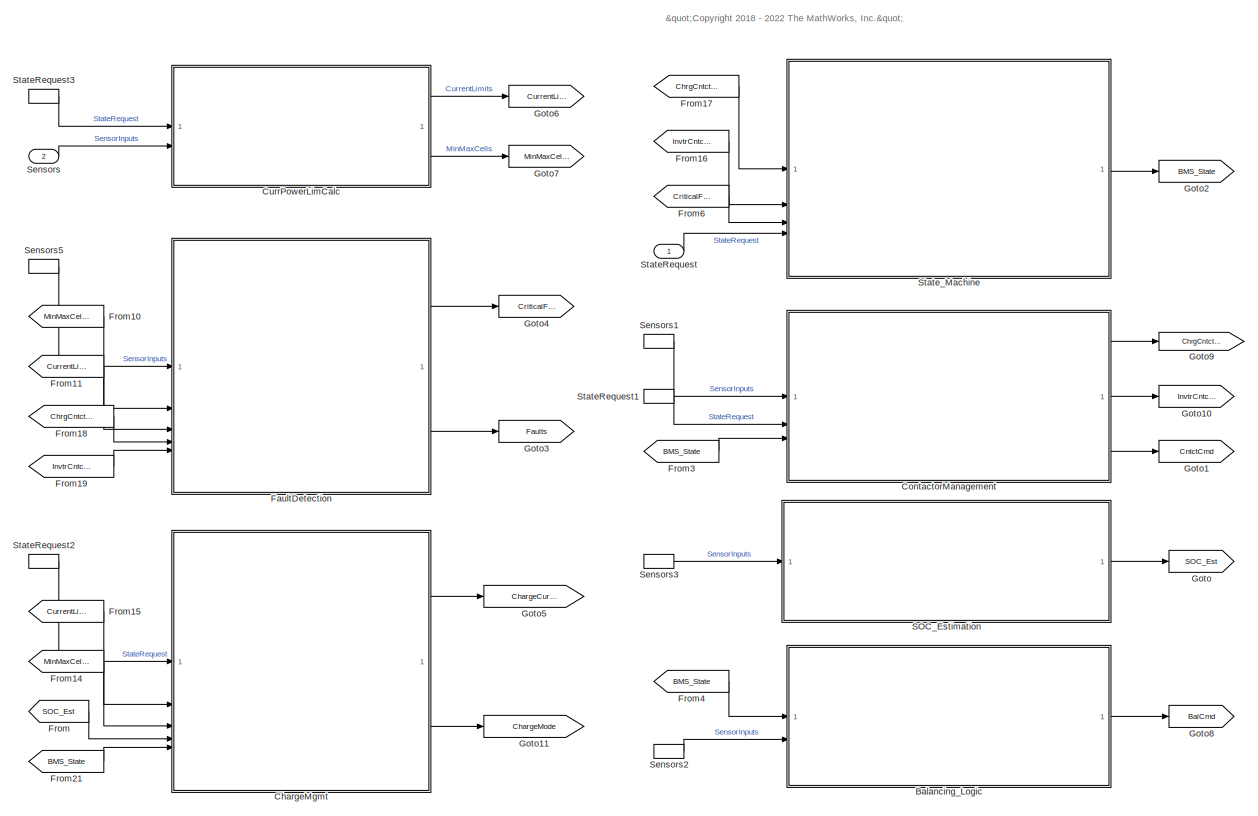
[diagram: root canvas - part 1/2, most of the canvas]
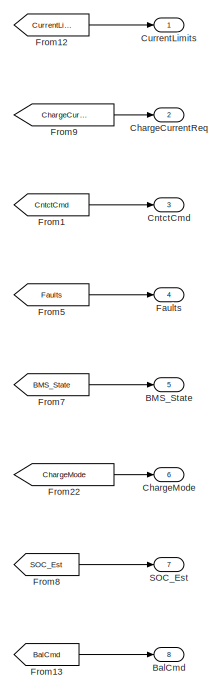
[diagram: root canvas - part 2/2, right side, full height]
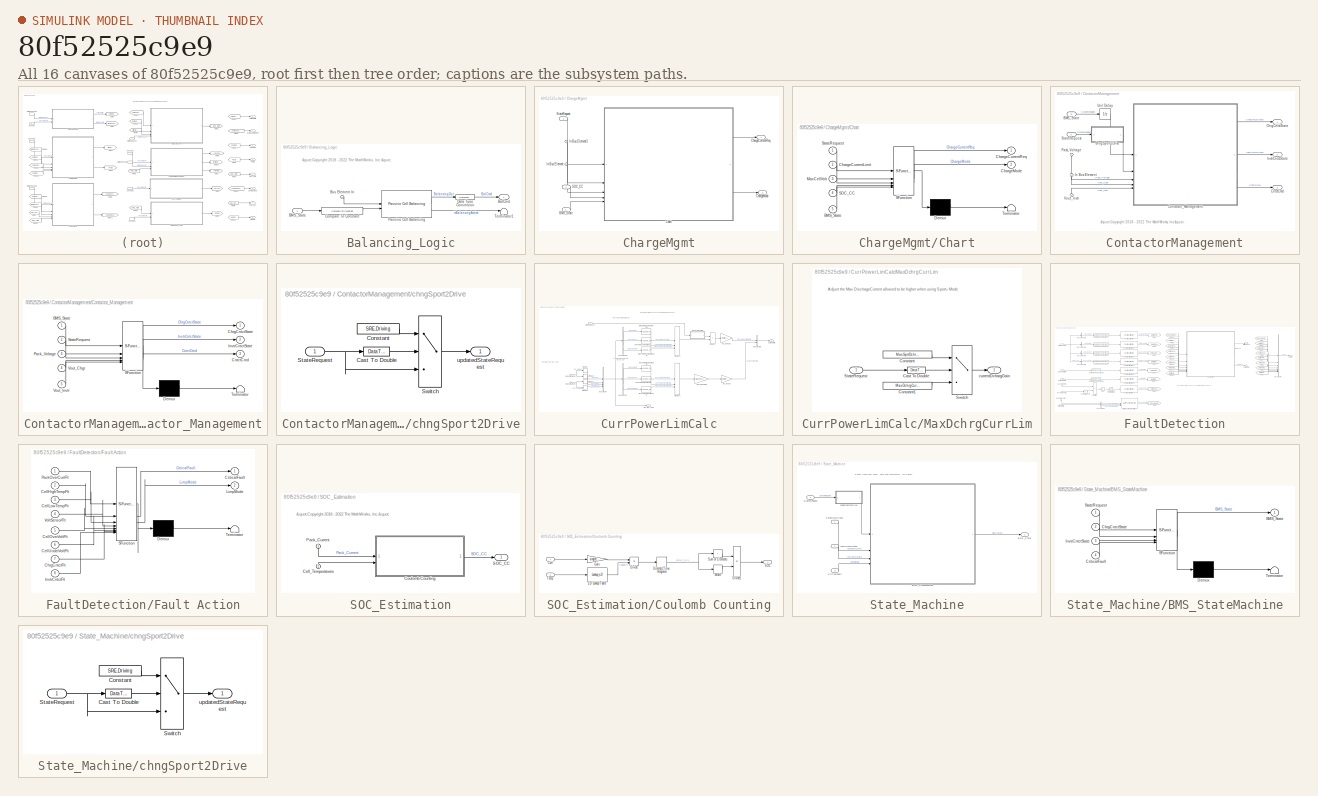
[diagram: thumbnail index - all 16 canvases of the model, root first then tree order]
MODEL slx_80f52525c9e9
KIND model
BLOCK [Outport] BMS_State
  Port = 5
BLOCK [Outport] BalCmd
  Port = 8
BLOCK [SubSystem] Balancing_Logic
BLOCK [Inport] Balancing_Logic/BMS_State
  OutDataTypeStr = Enum: BMS_State_Enum
  PortDimensions = 1
  SampleTime = [0.1,0]
  SamplingMode = Sample based
  SignalType = real
BLOCK [Outport] Balancing_Logic/BalCmd
  OutDataTypeStr = boolean
  PortDimensions = [1,PlntBattNumCellSer]
  SampleTime = [0.1,0]
  SamplingMode = Sample based
  SignalType = real
  VectorParamsAs1DForOutWhenUnconnected = off
BLOCK [Inport] Balancing_Logic/Bus Element In
  Port = 2
BLOCK [Reference] Balancing_Logic/Compare To Constant  REF=simulink/Logic and Bit
Operations/Compare
To Constant
  SourceBlock = simulink/Logic and Bit\nOperations/Compare\nTo Constant
  SourceType = Compare To Constant
BLOCK [DataTypeConversion] Balancing_Logic/Data Type Conversion
  OutDataTypeStr = boolean
  RndMeth = Floor
  SaturateOnIntegerOverflow = off
BLOCK [Reference] Balancing_Logic/Passive Cell Balancing  REF=BatteryBalancing/Passive Cell Balancing
  LibrarySourceBlock = batt_sl_lib/Cell Balancing/Passive Cell Balancing
  SourceBlock = BatteryBalancing/Passive Cell Balancing
  SourceType = Passive Cell Balancing
BLOCK [Terminator] Balancing_Logic/Terminator1
BLOCK [Outport] ChargeCurrentReq
  Port = 2
BLOCK [SubSystem] ChargeMgmt
BLOCK [Inport] ChargeMgmt/BMS_State
  OutDataTypeStr = Enum: BMS_State_Enum
  Port = 5
BLOCK [Outport] ChargeMgmt/ChargeCurrentReq
BLOCK [Outport] ChargeMgmt/ChargeMode
  Port = 2
BLOCK [SubSystem] ChargeMgmt/Chart
  ErrorFcn = Stateflow.Translate.translate
  PermitHierarchicalResolution = ExplicitOnly
  SFBlockType = Chart
  TreatAsAtomicUnit = on
BLOCK [Demux] ChargeMgmt/Chart/ Demux 
  Outputs = 1
BLOCK [S-Function] ChargeMgmt/Chart/ SFunction 
  EnableBusSupport = on
  FunctionName = sf_sfun
  Parameters = CV_Gain,MaxCellVoltThrsld,MaxChrgCurrLimit,PlntBattNumCellPar,currentFactor,noCurrent,voltThreshold
  PortCounts = [5 3]
  SFcnIsStateOwnerBlock = off
  SFunctionDeploymentMode = off
  Tag = Stateflow S-Function 4
BLOCK [Terminator] ChargeMgmt/Chart/ Terminator 
BLOCK [Inport] ChargeMgmt/Chart/BMS_State
  Port = 5
BLOCK [Inport] ChargeMgmt/Chart/ChargeCurrentLimit
  Port = 2
BLOCK [Outport] ChargeMgmt/Chart/ChargeCurrentReq
BLOCK [Outport] ChargeMgmt/Chart/ChargeMode
  Port = 2
BLOCK [Inport] ChargeMgmt/Chart/MaxCellVolt
  Port = 3
BLOCK [Inport] ChargeMgmt/Chart/SOC_CC
  Port = 4
BLOCK [Inport] ChargeMgmt/Chart/StateRequest
BLOCK [Inport] ChargeMgmt/In Bus Element
  Port = 3
BLOCK [Inport] ChargeMgmt/In Bus Element3
  Port = 2
BLOCK [Inport] ChargeMgmt/SOC_CC
  Port = 4
BLOCK [Inport] ChargeMgmt/StateRequest
  OutDataTypeStr = Enum: SRE
  PortDimensions = 1
  SignalType = real
  VarSizeSig = No
BLOCK [Outport] ChargeMode
  Port = 6
BLOCK [Outport] CntctCmd
  OutDataTypeStr = Bus: CntctCmd
  Port = 3
BLOCK [SubSystem] ContactorManagement
BLOCK [Inport] ContactorManagement/BMS_State
  OutDataTypeStr = Enum: BMS_State_Enum
  Port = 3
  PortDimensions = 1
  SampleTime = [0.10000000000000001,0]
  SamplingMode = Sample based
  SignalType = real
BLOCK [Outport] ContactorManagement/ChrgCntctState
BLOCK [Outport] ContactorManagement/CntctCmd
  BusOutputAsStruct = on
  OutDataTypeStr = Bus: CntctCmd
  Port = 3
BLOCK [SubSystem] ContactorManagement/Contactor_Management
  ErrorFcn = Stateflow.Translate.translate
  PermitHierarchicalResolution = ExplicitOnly
  SFBlockType = Chart
  TreatAsAtomicUnit = on
  VariantControl = (default)
BLOCK [Demux] ContactorManagement/Contactor_Management/ Demux 
  Outputs = 1
BLOCK [S-Function] ContactorManagement/Contactor_Management/ SFunction 
  EnableBusSupport = on
  FunctionName = sf_sfun
  Parameters = CntctWaitTime,PreChrgTimeOut,PreChrgVoltRatio
  PortCounts = [5 4]
  SFcnIsStateOwnerBlock = off
  SFunctionDeploymentMode = off
  Tag = Stateflow S-Function 3
BLOCK [Terminator] ContactorManagement/Contactor_Management/ Terminator 
BLOCK [Inport] ContactorManagement/Contactor_Management/BMS_State
BLOCK [Outport] ContactorManagement/Contactor_Management/ChrgCntctState
BLOCK [Outport] ContactorManagement/Contactor_Management/CntctCmd
  Port = 3
BLOCK [Outport] ContactorManagement/Contactor_Management/InvtrCntctState
  Port = 2
BLOCK [Inport] ContactorManagement/Contactor_Management/Pack_Voltage
  Port = 3
BLOCK [Inport] ContactorManagement/Contactor_Management/StateRequest
  Port = 2
BLOCK [Inport] ContactorManagement/Contactor_Management/Vout_Chgr
  Port = 4
BLOCK [Inport] ContactorManagement/Contactor_Management/Vout_Invtr
  Port = 5
BLOCK [Inport] ContactorManagement/In Bus Element
BLOCK [Outport] ContactorManagement/InvtrCntctState
  Port = 2
BLOCK [Inport] ContactorManagement/Pack_Voltage
BLOCK [Inport] ContactorManagement/StateRequest
  OutDataTypeStr = Enum: SRE
  Port = 2
  PortDimensions = 1
  SampleTime = [0.10000000000000001,0]
  SamplingMode = Sample based
  SignalType = real
BLOCK [UnitDelay] ContactorManagement/Unit Delay
  HasFrameUpgradeWarning = on
  InitialCondition = BMS_State_Enum.BMS_Standby
  SampleTime = -1
BLOCK [Inport] ContactorManagement/Vout_Invtr
BLOCK [SubSystem] ContactorManagement/chngSport2Drive
  ShowPortLabels = none
BLOCK [DataTypeConversion] ContactorManagement/chngSport2Drive/Cast To Double
  OutDataTypeStr = int8
  RndMeth = Floor
  SaturateOnIntegerOverflow = off
BLOCK [Constant] ContactorManagement/chngSport2Drive/Constant
  Value = SRE.Driving
BLOCK [Inport] ContactorManagement/chngSport2Drive/StateRequest
BLOCK [Switch] ContactorManagement/chngSport2Drive/Switch
  InputSameDT = off
  SaturateOnIntegerOverflow = off
  Threshold = 3
BLOCK [Outport] ContactorManagement/chngSport2Drive/updatedStateRequest
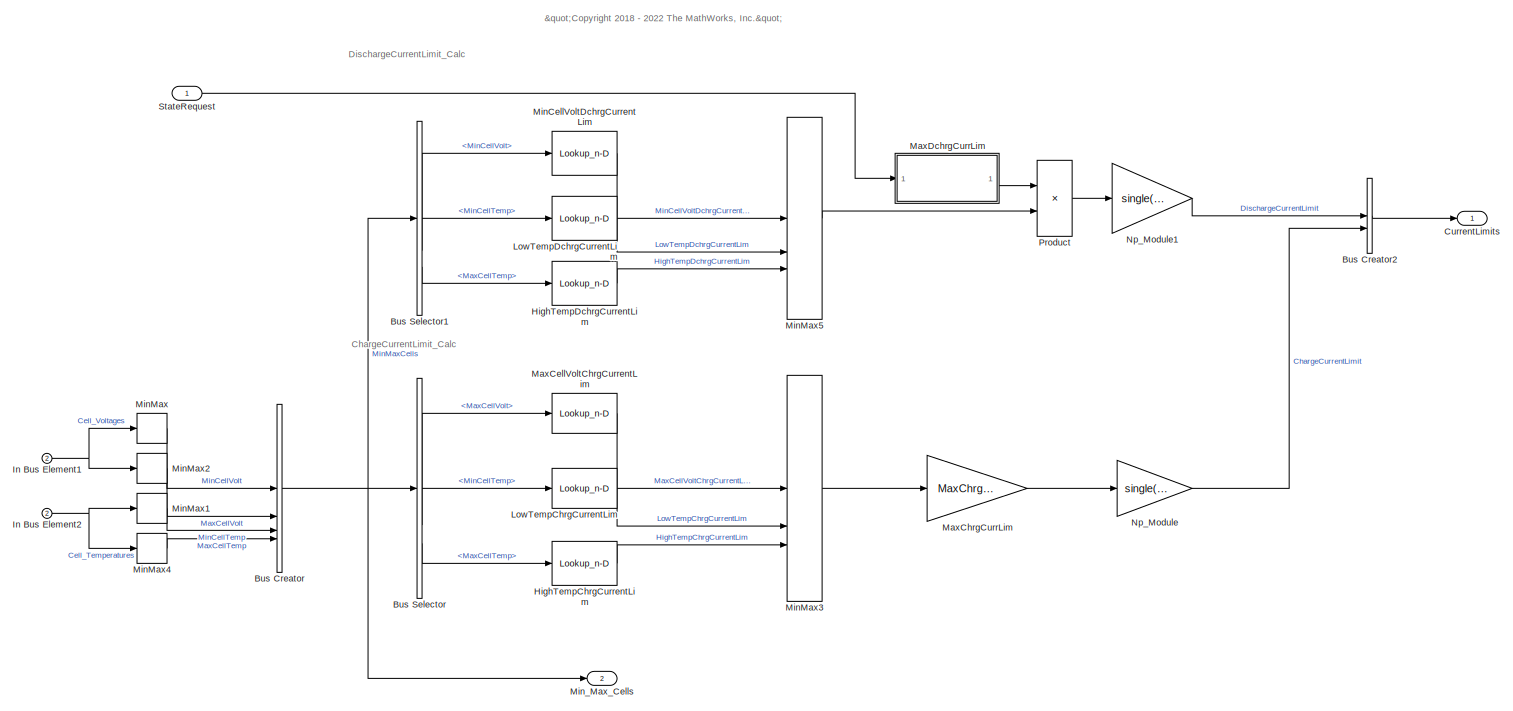
[diagram: CurrPowerLimCalc - part 1/2, most of the canvas]
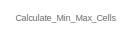
[diagram: CurrPowerLimCalc - part 2/2, middle left region]
BLOCK [SubSystem] CurrPowerLimCalc
BLOCK [BusCreator] CurrPowerLimCalc/Bus Creator
  DisplayOption = bar
  InheritFromInputs = off
  Inputs = 4
  NonVirtualBus = on
  OutDataTypeStr = Bus: Min_Max_Cells
BLOCK [BusCreator] CurrPowerLimCalc/Bus Creator2
  DisplayOption = bar
  InheritFromInputs = on
  Inputs = 2
  NonVirtualBus = on
  OutDataTypeStr = Bus: CurrentLimits
BLOCK [BusSelector] CurrPowerLimCalc/Bus Selector
  OutputSignals = MaxCellVolt,MinCellTemp,MaxCellTemp
BLOCK [BusSelector] CurrPowerLimCalc/Bus Selector1
  OutputSignals = MinCellVolt,MinCellTemp,MaxCellTemp
BLOCK [Outport] CurrPowerLimCalc/CurrentLimits
  OutDataTypeStr = Bus: CurrentLimits
BLOCK [Lookup_n-D] CurrPowerLimCalc/HighTempChrgCurrentLim
  BreakpointsForDimension1 = single([40  45  50    55 65])
  ExtrapMethod = Clip
  InputPortMap = u0
  InternalRulePriority = Speed
  NumberOfTableDimensions = 1
  RndMeth = Simplest
  Table = single([1.0 1.0 0.75 0.5 0])
BLOCK [Lookup_n-D] CurrPowerLimCalc/HighTempDchrgCurrentLim
  BreakpointsForDimension1 = single([40, 45, 50, 60])
  ExtrapMethod = Clip
  InputPortMap = u0
  InternalRulePriority = Speed
  NumberOfTableDimensions = 1
  RndMeth = Simplest
  Table = single([1, 0.5, 0.3, 0])
BLOCK [Inport] CurrPowerLimCalc/In Bus Element1
  Port = 2
BLOCK [Inport] CurrPowerLimCalc/In Bus Element2
  Port = 2
BLOCK [Lookup_n-D] CurrPowerLimCalc/LowTempChrgCurrentLim
  BreakpointsForDimension1 = single([-15 -10 -5.0 0.0 5.0 10 15.0])
  ExtrapMethod = Clip
  InputPortMap = u0
  InternalRulePriority = Speed
  NumberOfTableDimensions = 1
  RndMeth = Simplest
  Table = single([0.1 0.2  0.3 0.3 0.5 1.0 1.0])
BLOCK [Lookup_n-D] CurrPowerLimCalc/LowTempDchrgCurrentLim
  BreakpointsForDimension1 = single([-10, -5,    0,   5, 10, 15, 20])
  ExtrapMethod = Clip
  InputPortMap = u0
  InternalRulePriority = Speed
  NumberOfTableDimensions = 1
  RndMeth = Simplest
  Table = single([0,  0.2, 0.3, 0.5, 0.75, 1, 1])
BLOCK [Lookup_n-D] CurrPowerLimCalc/MaxCellVoltChrgCurrentLim
  BreakpointsForDimension1 = single([4.0 4.10 4.15 4.2])
  ExtrapMethod = Clip
  InputPortMap = u0
  InternalRulePriority = Speed
  NumberOfTableDimensions = 1
  RndMeth = Simplest
  Table = single([1.0 0.75 0.50 0.2])
BLOCK [Gain] CurrPowerLimCalc/MaxChrgCurrLim
  Gain = MaxChrgCurrLimit
BLOCK [SubSystem] CurrPowerLimCalc/MaxDchrgCurrLim
  ShowPortLabels = none
BLOCK [DataTypeConversion] CurrPowerLimCalc/MaxDchrgCurrLim/Cast To Double
  OutDataTypeStr = int8
  RndMeth = Floor
  SaturateOnIntegerOverflow = off
BLOCK [Constant] CurrPowerLimCalc/MaxDchrgCurrLim/Constant
  OutDataTypeStr = single
  Value = MaxSprtDchrgCurrLimit
BLOCK [Constant] CurrPowerLimCalc/MaxDchrgCurrLim/Constant1
  Value = MaxDchrgCurrLimit
BLOCK [Inport] CurrPowerLimCalc/MaxDchrgCurrLim/StateRequest
BLOCK [Switch] CurrPowerLimCalc/MaxDchrgCurrLim/Switch
  InputSameDT = off
  SaturateOnIntegerOverflow = off
  Threshold = 3
BLOCK [Outport] CurrPowerLimCalc/MaxDchrgCurrLim/currentDchargGain
BLOCK [Lookup_n-D] CurrPowerLimCalc/MinCellVoltDchrgCurrentLim
  BreakpointsForDimension1 = MinCellVoltDchrgCurrentLim_BP
  DataSpecification = Lookup table object
  ExtrapMethod = Clip
  InputPortMap = u0
  InternalRulePriority = Speed
  LookupTableObject = MinCellVoltDchrgCurrentLimTable
  NumberOfTableDimensions = 1
  RndMeth = Simplest
  Table = MinCellVoltDchrgCurrentLim_Table
BLOCK [MinMax] CurrPowerLimCalc/MinMax
BLOCK [MinMax] CurrPowerLimCalc/MinMax1
BLOCK [MinMax] CurrPowerLimCalc/MinMax2
  Function = max
BLOCK [MinMax] CurrPowerLimCalc/MinMax3
  Inputs = 3
BLOCK [MinMax] CurrPowerLimCalc/MinMax4
  Function = max
BLOCK [MinMax] CurrPowerLimCalc/MinMax5
  Inputs = 3
BLOCK [Outport] CurrPowerLimCalc/Min_Max_Cells
  OutDataTypeStr = Bus: Min_Max_Cells
  Port = 2
BLOCK [Gain] CurrPowerLimCalc/Np_Module
  Gain = single(PlntBattNumCellPar)
  ParamDataTypeStr = Inherit: Inherit from 'Gain'
BLOCK [Gain] CurrPowerLimCalc/Np_Module1
  Gain = single(PlntBattNumCellPar)
  ParamDataTypeStr = Inherit: Inherit from 'Gain'
BLOCK [Product] CurrPowerLimCalc/Product
BLOCK [Inport] CurrPowerLimCalc/StateRequest
BLOCK [Outport] CurrentLimits
  OutDataTypeStr = Bus: CurrentLimits
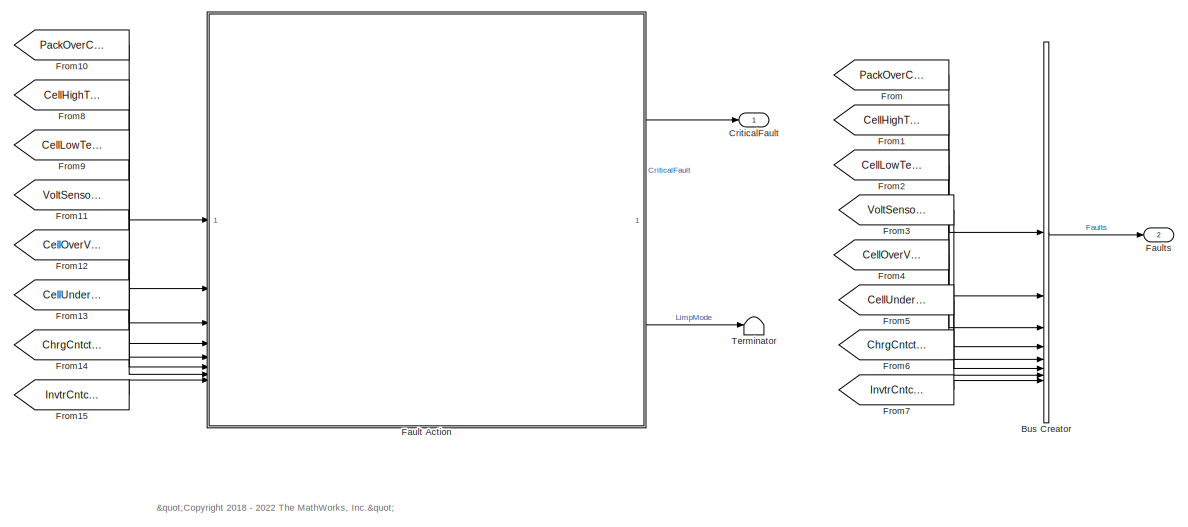
[diagram: FaultDetection - part 1/2, middle right region]
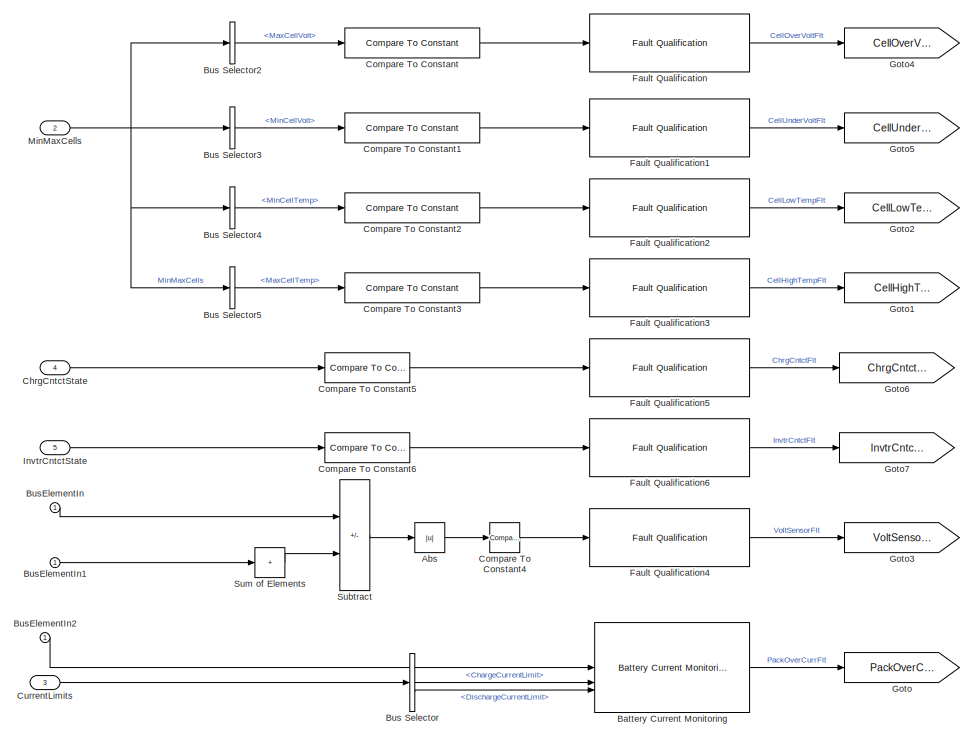
[diagram: FaultDetection - part 2/2, left side, full height]
BLOCK [SubSystem] FaultDetection
BLOCK [Abs] FaultDetection/Abs
  SaturateOnIntegerOverflow = off
BLOCK [Reference] FaultDetection/Battery Current Monitoring  REF=BatteryProtection/Battery Current
Monitoring
  LibrarySourceBlock = batt_sl_lib/Protection/Battery Current\nMonitoring
  SourceBlock = BatteryProtection/Battery Current\nMonitoring
  SourceType = Battery Current Monitoring
BLOCK [BusCreator] FaultDetection/Bus Creator
  DisplayOption = bar
  InheritFromInputs = off
  Inputs = 8
  NonVirtualBus = on
  OutDataTypeStr = Bus: Faults
BLOCK [BusSelector] FaultDetection/Bus Selector
  OutputSignals = ChargeCurrentLimit,DischargeCurrentLimit
BLOCK [BusSelector] FaultDetection/Bus Selector2
  OutputSignals = MaxCellVolt
BLOCK [BusSelector] FaultDetection/Bus Selector3
  OutputSignals = MinCellVolt
BLOCK [BusSelector] FaultDetection/Bus Selector4
  OutputSignals = MinCellTemp
BLOCK [BusSelector] FaultDetection/Bus Selector5
  OutputSignals = MaxCellTemp
BLOCK [Inport] FaultDetection/BusElementIn
BLOCK [Inport] FaultDetection/BusElementIn1
BLOCK [Inport] FaultDetection/BusElementIn2
BLOCK [Inport] FaultDetection/ChrgCntctState
  OutDataTypeStr = Enum: Contact
  Port = 4
BLOCK [Reference] FaultDetection/Compare To Constant  REF=simulink/Logic and Bit
Operations/Compare
To Constant
  SourceBlock = simulink/Logic and Bit\nOperations/Compare\nTo Constant
  SourceType = Compare To Constant
BLOCK [Reference] FaultDetection/Compare To Constant1  REF=simulink/Logic and Bit
Operations/Compare
To Constant
  SourceBlock = simulink/Logic and Bit\nOperations/Compare\nTo Constant
  SourceType = Compare To Constant
BLOCK [Reference] FaultDetection/Compare To Constant2  REF=simulink/Logic and Bit
Operations/Compare
To Constant
  SourceBlock = simulink/Logic and Bit\nOperations/Compare\nTo Constant
  SourceType = Compare To Constant
BLOCK [Reference] FaultDetection/Compare To Constant3  REF=simulink/Logic and Bit
Operations/Compare
To Constant
  SourceBlock = simulink/Logic and Bit\nOperations/Compare\nTo Constant
  SourceType = Compare To Constant
BLOCK [Reference] FaultDetection/Compare To Constant4  REF=simulink/Logic and Bit
Operations/Compare
To Constant
  SourceBlock = simulink/Logic and Bit\nOperations/Compare\nTo Constant
  SourceType = Compare To Constant
BLOCK [Reference] FaultDetection/Compare To Constant5  REF=simulink/Logic and Bit
Operations/Compare
To Constant
  SourceBlock = simulink/Logic and Bit\nOperations/Compare\nTo Constant
  SourceType = Compare To Constant
BLOCK [Reference] FaultDetection/Compare To Constant6  REF=simulink/Logic and Bit
Operations/Compare
To Constant
  SourceBlock = simulink/Logic and Bit\nOperations/Compare\nTo Constant
  SourceType = Compare To Constant
BLOCK [Outport] FaultDetection/CriticalFault
BLOCK [Inport] FaultDetection/CurrentLimits
  OutDataTypeStr = Bus: CurrentLimits
  Port = 3
BLOCK [SubSystem] FaultDetection/Fault Action
  ErrorFcn = Stateflow.Translate.translate
  PermitHierarchicalResolution = ExplicitOnly
  SFBlockType = Truth Table
  TreatAsAtomicUnit = on
BLOCK [Demux] FaultDetection/Fault Action/ Demux 
  Outputs = 1
BLOCK [S-Function] FaultDetection/Fault Action/ SFunction 
  EnableBusSupport = on
  FunctionName = sf_sfun
  PortCounts = [8 3]
  SFcnIsStateOwnerBlock = off
  SFunctionDeploymentMode = off
  Tag = Stateflow S-Function 2
BLOCK [Terminator] FaultDetection/Fault Action/ Terminator 
BLOCK [Inport] FaultDetection/Fault Action/CellHighTempFlt
  Port = 2
BLOCK [Inport] FaultDetection/Fault Action/CellLowTempFlt
  Port = 3
BLOCK [Inport] FaultDetection/Fault Action/CellOverVoltFlt
  Port = 5
BLOCK [Inport] FaultDetection/Fault Action/CellUnderVoltFlt
  Port = 6
BLOCK [Inport] FaultDetection/Fault Action/ChrgCntctFlt
  Port = 7
BLOCK [Outport] FaultDetection/Fault Action/CriticalFault
  VectorParamsAs1DForOutWhenUnconnected = off
BLOCK [Inport] FaultDetection/Fault Action/InvtrCntctFlt
  Port = 8
BLOCK [Outport] FaultDetection/Fault Action/LimpMode
  Port = 2
BLOCK [Inport] FaultDetection/Fault Action/PackOverCurrFlt
BLOCK [Inport] FaultDetection/Fault Action/VoltSensorFlt
  Port = 4
BLOCK [Reference] FaultDetection/Fault Qualification  REF=BatteryProtection/Fault Qualification
  LibrarySourceBlock = batt_sl_lib/Protection/Fault Qualification
  SourceBlock = BatteryProtection/Fault Qualification
  SourceType = Fault Qualification
BLOCK [Reference] FaultDetection/Fault Qualification1  REF=BatteryProtection/Fault Qualification
  LibrarySourceBlock = batt_sl_lib/Protection/Fault Qualification
  SourceBlock = BatteryProtection/Fault Qualification
  SourceType = Fault Qualification
BLOCK [Reference] FaultDetection/Fault Qualification2  REF=BatteryProtection/Fault Qualification
  LibrarySourceBlock = batt_sl_lib/Protection/Fault Qualification
  SourceBlock = BatteryProtection/Fault Qualification
  SourceType = Fault Qualification
BLOCK [Reference] FaultDetection/Fault Qualification3  REF=BatteryProtection/Fault Qualification
  LibrarySourceBlock = batt_sl_lib/Protection/Fault Qualification
  SourceBlock = BatteryProtection/Fault Qualification
  SourceType = Fault Qualification
BLOCK [Reference] FaultDetection/Fault Qualification4  REF=BatteryProtection/Fault Qualification
  LibrarySourceBlock = batt_sl_lib/Protection/Fault Qualification
  SourceBlock = BatteryProtection/Fault Qualification
  SourceType = Fault Qualification
BLOCK [Reference] FaultDetection/Fault Qualification5  REF=BatteryProtection/Fault Qualification
  LibrarySourceBlock = batt_sl_lib/Protection/Fault Qualification
  SourceBlock = BatteryProtection/Fault Qualification
  SourceType = Fault Qualification
BLOCK [Reference] FaultDetection/Fault Qualification6  REF=BatteryProtection/Fault Qualification
  LibrarySourceBlock = batt_sl_lib/Protection/Fault Qualification
  SourceBlock = BatteryProtection/Fault Qualification
  SourceType = Fault Qualification
BLOCK [Outport] FaultDetection/Faults
  OutDataTypeStr = Bus: Faults
  Port = 2
BLOCK [From] FaultDetection/From
  GotoTag = PackOverCurrFlt
BLOCK [From] FaultDetection/From1
  GotoTag = CellHighTempFlt
BLOCK [From] FaultDetection/From10
  GotoTag = PackOverCurrFlt
BLOCK [From] FaultDetection/From11
  GotoTag = VoltSensorFlt
BLOCK [From] FaultDetection/From12
  GotoTag = CellOverVoltFlt
BLOCK [From] FaultDetection/From13
  GotoTag = CellUnderVoltFlt
BLOCK [From] FaultDetection/From14
  GotoTag = ChrgCntctFlt
BLOCK [From] FaultDetection/From15
  GotoTag = InvtrCntctFlt
BLOCK [From] FaultDetection/From2
  GotoTag = CellLowTempFlt
BLOCK [From] FaultDetection/From3
  GotoTag = VoltSensorFlt
BLOCK [From] FaultDetection/From4
  GotoTag = CellOverVoltFlt
BLOCK [From] FaultDetection/From5
  GotoTag = CellUnderVoltFlt
BLOCK [From] FaultDetection/From6
  GotoTag = ChrgCntctFlt
BLOCK [From] FaultDetection/From7
  GotoTag = InvtrCntctFlt
BLOCK [From] FaultDetection/From8
  GotoTag = CellHighTempFlt
BLOCK [From] FaultDetection/From9
  GotoTag = CellLowTempFlt
BLOCK [Goto] FaultDetection/Goto
  GotoTag = PackOverCurrFlt
BLOCK [Goto] FaultDetection/Goto1
  GotoTag = CellHighTempFlt
BLOCK [Goto] FaultDetection/Goto2
  GotoTag = CellLowTempFlt
BLOCK [Goto] FaultDetection/Goto3
  GotoTag = VoltSensorFlt
BLOCK [Goto] FaultDetection/Goto4
  GotoTag = CellOverVoltFlt
BLOCK [Goto] FaultDetection/Goto5
  GotoTag = CellUnderVoltFlt
BLOCK [Goto] FaultDetection/Goto6
  GotoTag = ChrgCntctFlt
BLOCK [Goto] FaultDetection/Goto7
  GotoTag = InvtrCntctFlt
BLOCK [Inport] FaultDetection/InvtrCntctState
  OutDataTypeStr = Enum: Contact
  Port = 5
BLOCK [Inport] FaultDetection/MinMaxCells
  OutDataTypeStr = Bus: Min_Max_Cells
  Port = 2
BLOCK [Sum] FaultDetection/Subtract
  IconShape = rectangular
  Inputs = +-
BLOCK [Sum] FaultDetection/Sum of Elements
  IconShape = rectangular
  Inputs = +
BLOCK [Terminator] FaultDetection/Terminator
BLOCK [Outport] Faults
  OutDataTypeStr = Bus: Faults
  Port = 4
BLOCK [From] From
  GotoTag = SOC_Est
BLOCK [From] From1
  GotoTag = CntctCmd
BLOCK [From] From10
  GotoTag = MinMaxCells
BLOCK [From] From11
  GotoTag = CurrentLimits
BLOCK [From] From12
  GotoTag = CurrentLimits
BLOCK [From] From13
  GotoTag = BalCmd
BLOCK [From] From14
  GotoTag = MinMaxCells
BLOCK [From] From15
  GotoTag = CurrentLimits
BLOCK [From] From16
  GotoTag = InvtrCntctState
BLOCK [From] From17
  GotoTag = ChrgCntctState
BLOCK [From] From18
  GotoTag = ChrgCntctState
BLOCK [From] From19
  GotoTag = InvtrCntctState
BLOCK [From] From21
  GotoTag = BMS_State
BLOCK [From] From22
  GotoTag = ChargeMode
BLOCK [From] From3
  GotoTag = BMS_State
BLOCK [From] From4
  GotoTag = BMS_State
BLOCK [From] From5
  GotoTag = Faults
BLOCK [From] From6
  GotoTag = CriticalFault
BLOCK [From] From7
  GotoTag = BMS_State
BLOCK [From] From8
  GotoTag = SOC_Est
BLOCK [From] From9
  GotoTag = ChargeCurrentReq
BLOCK [Goto] Goto
  GotoTag = SOC_Est
BLOCK [Goto] Goto1
  GotoTag = CntctCmd
BLOCK [Goto] Goto10
  GotoTag = InvtrCntctState
BLOCK [Goto] Goto11
  GotoTag = ChargeMode
BLOCK [Goto] Goto2
  GotoTag = BMS_State
BLOCK [Goto] Goto3
  GotoTag = Faults
BLOCK [Goto] Goto4
  GotoTag = CriticalFault
BLOCK [Goto] Goto5
  GotoTag = ChargeCurrentReq
BLOCK [Goto] Goto6
  GotoTag = CurrentLimits
BLOCK [Goto] Goto7
  GotoTag = MinMaxCells
BLOCK [Goto] Goto8
  GotoTag = BalCmd
BLOCK [Goto] Goto9
  GotoTag = ChrgCntctState
BLOCK [Outport] SOC_Est
  Port = 7
BLOCK [SubSystem] SOC_Estimation
BLOCK [Inport] SOC_Estimation/Cell_Temperatures
BLOCK [SubSystem] SOC_Estimation/Coulomb Counting
  VariantControl = SocAlgo==1
BLOCK [Lookup_n-D] SOC_Estimation/Coulomb Counting/1-D Lookup Table
  BreakpointsForDimension1 = single(BatteryNN(1).T_vec)
  InputPortMap = u0
  InternalRulePriority = Speed
  NumberOfTableDimensions = 1
  RndMeth = Simplest
  Table = single(BatteryNN(1).AH)*PlntBattNumCellPar
BLOCK [Inport] SOC_Estimation/Coulomb Counting/Curr
BLOCK [DiscreteIntegrator] SOC_Estimation/Coulomb Counting/Discrete-Time Integrator
  ICPrevOutput = DiscIntNeverNeededParam
  ICPrevScaledInput = DiscIntNeverNeededParam
  InitialCondition = ones(1,PlntBattNumCellSer)*single(SOCInit)
  InitialConditionSetting = Auto
  LimitOutput = on
  LowerSaturationLimit = 0
  SampleTime = -1
  UpperSaturationLimit = 1
BLOCK [Product] SOC_Estimation/Coulomb Counting/Divide
  Inputs = */
  NameLocation = top
BLOCK [Product] SOC_Estimation/Coulomb Counting/Divide1
  Inputs = */
BLOCK [Gain] SOC_Estimation/Coulomb Counting/Gain
  Gain = single(1/3600)
BLOCK [Outport] SOC_Estimation/Coulomb Counting/SOC
  VectorParamsAs1DForOutWhenUnconnected = off
BLOCK [Sum] SOC_Estimation/Coulomb Counting/Sum of Elements
  IconShape = rectangular
  Inputs = +
BLOCK [Inport] SOC_Estimation/Coulomb Counting/Temp
  Port = 2
BLOCK [Width] SOC_Estimation/Coulomb Counting/Width
  DataType = single
BLOCK [Inport] SOC_Estimation/Pack_Current
BLOCK [Outport] SOC_Estimation/SOC_CC
BLOCK [Inport] Sensors
  BusOutputAsStruct = on
  OutDataTypeStr = Bus: Sensors
  Port = 2
  VarSizeSig = No
BLOCK [InportShadow] Sensors1
  BusOutputAsStruct = on
  OutDataTypeStr = Bus: Sensors
  Port = 2
  VarSizeSig = No
BLOCK [InportShadow] Sensors2
  BusOutputAsStruct = on
  OutDataTypeStr = Bus: Sensors
  Port = 2
  VarSizeSig = No
BLOCK [InportShadow] Sensors3
  BusOutputAsStruct = on
  OutDataTypeStr = Bus: Sensors
  Port = 2
  VarSizeSig = No
BLOCK [InportShadow] Sensors5
  BusOutputAsStruct = on
  OutDataTypeStr = Bus: Sensors
  Port = 2
  VarSizeSig = No
BLOCK [Inport] StateRequest
  OutDataTypeStr = Enum: SRE
  PortDimensions = 1
  SampleTime = ts
  SignalType = real
  VarSizeSig = No
BLOCK [InportShadow] StateRequest1
  OutDataTypeStr = Enum: SRE
  PortDimensions = 1
  SampleTime = ts
  SignalType = real
  VarSizeSig = No
BLOCK [InportShadow] StateRequest2
  OutDataTypeStr = Enum: SRE
  PortDimensions = 1
  SampleTime = ts
  SignalType = real
  VarSizeSig = No
BLOCK [InportShadow] StateRequest3
  OutDataTypeStr = Enum: SRE
  PortDimensions = 1
  SampleTime = ts
  SignalType = real
  VarSizeSig = No
BLOCK [SubSystem] State_Machine
BLOCK [Outport] State_Machine/BMS_State
  OutDataTypeStr = Enum: BMS_State_Enum
  PortDimensions = 1
  SampleTime = [0.10000000000000001,0]
  SamplingMode = Sample based
  SignalType = real
  VectorParamsAs1DForOutWhenUnconnected = off
BLOCK [SubSystem] State_Machine/BMS_StateMachine
  ErrorFcn = Stateflow.Translate.translate
  PermitHierarchicalResolution = ExplicitOnly
  SFBlockType = Chart
  TreatAsAtomicUnit = on
  VariantControl = (default)
BLOCK [Demux] State_Machine/BMS_StateMachine/ Demux 
  Outputs = 1
BLOCK [S-Function] State_Machine/BMS_StateMachine/ SFunction 
  EnableBusSupport = on
  FunctionName = sf_sfun
  PortCounts = [4 2]
  SFcnIsStateOwnerBlock = off
  SFunctionDeploymentMode = off
  Tag = Stateflow S-Function 1
BLOCK [Terminator] State_Machine/BMS_StateMachine/ Terminator 
BLOCK [Outport] State_Machine/BMS_StateMachine/BMS_State
  VectorParamsAs1DForOutWhenUnconnected = off
BLOCK [Inport] State_Machine/BMS_StateMachine/ChrgCntctState
  Port = 2
BLOCK [Inport] State_Machine/BMS_StateMachine/CriticalFault
  Port = 4
BLOCK [Inport] State_Machine/BMS_StateMachine/InvtrCntctState
  Port = 3
BLOCK [Inport] State_Machine/BMS_StateMachine/StateRequest
BLOCK [Inport] State_Machine/ChrgCntctState
BLOCK [Inport] State_Machine/CriticalFault
  Port = 3
BLOCK [Inport] State_Machine/InvtrCntctState
  Port = 2
BLOCK [Inport] State_Machine/StateRequest
  Interpolate = off
  OutDataTypeStr = Enum: SRE
  Port = 4
  PortDimensions = 1
  SampleTime = [0.10000000000000001,0]
  SamplingMode = Sample based
  SignalType = real
BLOCK [SubSystem] State_Machine/chngSport2Drive
  ShowPortLabels = none
BLOCK [DataTypeConversion] State_Machine/chngSport2Drive/Cast To Double
  OutDataTypeStr = int8
  RndMeth = Floor
  SaturateOnIntegerOverflow = off
BLOCK [Constant] State_Machine/chngSport2Drive/Constant
  Value = SRE.Driving
BLOCK [Inport] State_Machine/chngSport2Drive/StateRequest
BLOCK [Switch] State_Machine/chngSport2Drive/Switch
  InputSameDT = off
  SaturateOnIntegerOverflow = off
  Threshold = 3
BLOCK [Outport] State_Machine/chngSport2Drive/updatedStateRequest
ANNOTATION (root): "<copyright redacted>
ANNOTATION Balancing_Logic: "<copyright redacted>
ANNOTATION ContactorManagement: "<copyright redacted>
ANNOTATION CurrPowerLimCalc: "<copyright redacted>
ANNOTATION CurrPowerLimCalc: Calculate_Min_Max_Cells
ANNOTATION CurrPowerLimCalc: ChargeCurrentLimit_Calc
ANNOTATION CurrPowerLimCalc: DischargeCurrentLimit_Calc
ANNOTATION CurrPowerLimCalc/MaxDchrgCurrLim: Adjust the Max DischageCurrent allowed to be higher when using Sport+ Mode
ANNOTATION FaultDetection: "<copyright redacted>
ANNOTATION SOC_Estimation: "<copyright redacted>
ANNOTATION State_Machine: "<copyright redacted>
LINE Balancing_Logic/BMS_State:1 -> Balancing_Logic/Compare To Constant:1
LINE Balancing_Logic/Bus Element In:1 -> Balancing_Logic/Passive Cell Balancing:1
LINE Balancing_Logic/Compare To Constant:1 -> Balancing_Logic/Passive Cell Balancing:2
LINE Balancing_Logic/Data Type Conversion:1 -> Balancing_Logic/BalCmd:1
LINE Balancing_Logic/Passive Cell Balancing:1 -> Balancing_Logic/Data Type Conversion:1
LINE Balancing_Logic/Passive Cell Balancing:2 -> Balancing_Logic/Terminator1:1
LINE Balancing_Logic:1 -> Goto8:1
LINE ChargeMgmt/BMS_State:1 -> ChargeMgmt/Chart:5
LINE ChargeMgmt/Chart:1 -> ChargeMgmt/ChargeCurrentReq:1
LINE ChargeMgmt/Chart:2 -> ChargeMgmt/ChargeMode:1
LINE ChargeMgmt/In Bus Element3:1 -> ChargeMgmt/Chart:2
LINE ChargeMgmt/In Bus Element:1 -> ChargeMgmt/Chart:3
LINE ChargeMgmt/SOC_CC:1 -> ChargeMgmt/Chart:4
LINE ChargeMgmt/StateRequest:1 -> ChargeMgmt/Chart:1
LINE ChargeMgmt:1 -> Goto5:1
LINE ChargeMgmt:2 -> Goto11:1
LINE ContactorManagement/BMS_State:1 -> ContactorManagement/Unit Delay:1
LINE ContactorManagement/Contactor_Management:1 -> ContactorManagement/ChrgCntctState:1
LINE ContactorManagement/Contactor_Management:2 -> ContactorManagement/InvtrCntctState:1
LINE ContactorManagement/Contactor_Management:3 -> ContactorManagement/CntctCmd:1
LINE ContactorManagement/In Bus Element:1 -> ContactorManagement/Contactor_Management:4
LINE ContactorManagement/Pack_Voltage:1 -> ContactorManagement/Contactor_Management:3
LINE ContactorManagement/StateRequest:1 -> ContactorManagement/chngSport2Drive:1
LINE ContactorManagement/Unit Delay:1 -> ContactorManagement/Contactor_Management:1
LINE ContactorManagement/Vout_Invtr:1 -> ContactorManagement/Contactor_Management:5
LINE ContactorManagement/chngSport2Drive/Cast To Double:1 -> ContactorManagement/chngSport2Drive/Switch:2
LINE ContactorManagement/chngSport2Drive/Constant:1 -> ContactorManagement/chngSport2Drive/Switch:1
NET ContactorManagement/chngSport2Drive/StateRequest:1 -> ContactorManagement/chngSport2Drive/Cast To Double:1, ContactorManagement/chngSport2Drive/Switch:3
LINE ContactorManagement/chngSport2Drive/Switch:1 -> ContactorManagement/chngSport2Drive/updatedStateRequest:1
LINE ContactorManagement/chngSport2Drive:1 -> ContactorManagement/Contactor_Management:2
LINE ContactorManagement:1 -> Goto9:1
LINE ContactorManagement:2 -> Goto10:1
LINE ContactorManagement:3 -> Goto1:1
LINE CurrPowerLimCalc/Bus Creator2:1 -> CurrPowerLimCalc/CurrentLimits:1
NET CurrPowerLimCalc/Bus Creator:1 -> CurrPowerLimCalc/Bus Selector1:1, CurrPowerLimCalc/Bus Selector:1, CurrPowerLimCalc/Min_Max_Cells:1
LINE CurrPowerLimCalc/Bus Selector1:1 -> CurrPowerLimCalc/MinCellVoltDchrgCurrentLim:1
LINE CurrPowerLimCalc/Bus Selector1:2 -> CurrPowerLimCalc/LowTempDchrgCurrentLim:1
LINE CurrPowerLimCalc/Bus Selector1:3 -> CurrPowerLimCalc/HighTempDchrgCurrentLim:1
LINE CurrPowerLimCalc/Bus Selector:1 -> CurrPowerLimCalc/MaxCellVoltChrgCurrentLim:1
LINE CurrPowerLimCalc/Bus Selector:2 -> CurrPowerLimCalc/LowTempChrgCurrentLim:1
LINE CurrPowerLimCalc/Bus Selector:3 -> CurrPowerLimCalc/HighTempChrgCurrentLim:1
LINE CurrPowerLimCalc/HighTempChrgCurrentLim:1 -> CurrPowerLimCalc/MinMax3:3
LINE CurrPowerLimCalc/HighTempDchrgCurrentLim:1 -> CurrPowerLimCalc/MinMax5:3
NET CurrPowerLimCalc/In Bus Element1:1 -> CurrPowerLimCalc/MinMax2:1, CurrPowerLimCalc/MinMax:1
NET CurrPowerLimCalc/In Bus Element2:1 -> CurrPowerLimCalc/MinMax1:1, CurrPowerLimCalc/MinMax4:1
LINE CurrPowerLimCalc/LowTempChrgCurrentLim:1 -> CurrPowerLimCalc/MinMax3:2
LINE CurrPowerLimCalc/LowTempDchrgCurrentLim:1 -> CurrPowerLimCalc/MinMax5:2
LINE CurrPowerLimCalc/MaxCellVoltChrgCurrentLim:1 -> CurrPowerLimCalc/MinMax3:1
LINE CurrPowerLimCalc/MaxChrgCurrLim:1 -> CurrPowerLimCalc/Np_Module:1
LINE CurrPowerLimCalc/MaxDchrgCurrLim/Cast To Double:1 -> CurrPowerLimCalc/MaxDchrgCurrLim/Switch:2
LINE CurrPowerLimCalc/MaxDchrgCurrLim/Constant1:1 -> CurrPowerLimCalc/MaxDchrgCurrLim/Switch:3
LINE CurrPowerLimCalc/MaxDchrgCurrLim/Constant:1 -> CurrPowerLimCalc/MaxDchrgCurrLim/Switch:1
LINE CurrPowerLimCalc/MaxDchrgCurrLim/StateRequest:1 -> CurrPowerLimCalc/MaxDchrgCurrLim/Cast To Double:1
LINE CurrPowerLimCalc/MaxDchrgCurrLim/Switch:1 -> CurrPowerLimCalc/MaxDchrgCurrLim/currentDchargGain:1
LINE CurrPowerLimCalc/MaxDchrgCurrLim:1 -> CurrPowerLimCalc/Product:1
LINE CurrPowerLimCalc/MinCellVoltDchrgCurrentLim:1 -> CurrPowerLimCalc/MinMax5:1
LINE CurrPowerLimCalc/MinMax1:1 -> CurrPowerLimCalc/Bus Creator:3
LINE CurrPowerLimCalc/MinMax2:1 -> CurrPowerLimCalc/Bus Creator:2
LINE CurrPowerLimCalc/MinMax3:1 -> CurrPowerLimCalc/MaxChrgCurrLim:1
LINE CurrPowerLimCalc/MinMax4:1 -> CurrPowerLimCalc/Bus Creator:4
LINE CurrPowerLimCalc/MinMax5:1 -> CurrPowerLimCalc/Product:2
LINE CurrPowerLimCalc/MinMax:1 -> CurrPowerLimCalc/Bus Creator:1
LINE CurrPowerLimCalc/Np_Module1:1 -> CurrPowerLimCalc/Bus Creator2:1
LINE CurrPowerLimCalc/Np_Module:1 -> CurrPowerLimCalc/Bus Creator2:2
LINE CurrPowerLimCalc/Product:1 -> CurrPowerLimCalc/Np_Module1:1
LINE CurrPowerLimCalc/StateRequest:1 -> CurrPowerLimCalc/MaxDchrgCurrLim:1
LINE CurrPowerLimCalc:1 -> Goto6:1
LINE CurrPowerLimCalc:2 -> Goto7:1
LINE FaultDetection/Abs:1 -> FaultDetection/Compare To Constant4:1
LINE FaultDetection/Battery Current Monitoring:1 -> FaultDetection/Goto:1
LINE FaultDetection/Bus Creator:1 -> FaultDetection/Faults:1
LINE FaultDetection/Bus Selector2:1 -> FaultDetection/Compare To Constant:1
LINE FaultDetection/Bus Selector3:1 -> FaultDetection/Compare To Constant1:1
LINE FaultDetection/Bus Selector4:1 -> FaultDetection/Compare To Constant2:1
LINE FaultDetection/Bus Selector5:1 -> FaultDetection/Compare To Constant3:1
LINE FaultDetection/Bus Selector:1 -> FaultDetection/Battery Current Monitoring:2
LINE FaultDetection/Bus Selector:2 -> FaultDetection/Battery Current Monitoring:3
LINE FaultDetection/BusElementIn1:1 -> FaultDetection/Sum of Elements:1
LINE FaultDetection/BusElementIn2:1 -> FaultDetection/Battery Current Monitoring:1
LINE FaultDetection/BusElementIn:1 -> FaultDetection/Subtract:1
LINE FaultDetection/ChrgCntctState:1 -> FaultDetection/Compare To Constant5:1
LINE FaultDetection/Compare To Constant1:1 -> FaultDetection/Fault Qualification1:1
LINE FaultDetection/Compare To Constant2:1 -> FaultDetection/Fault Qualification2:1
LINE FaultDetection/Compare To Constant3:1 -> FaultDetection/Fault Qualification3:1
LINE FaultDetection/Compare To Constant4:1 -> FaultDetection/Fault Qualification4:1
LINE FaultDetection/Compare To Constant5:1 -> FaultDetection/Fault Qualification5:1
LINE FaultDetection/Compare To Constant6:1 -> FaultDetection/Fault Qualification6:1
LINE FaultDetection/Compare To Constant:1 -> FaultDetection/Fault Qualification:1
LINE FaultDetection/CurrentLimits:1 -> FaultDetection/Bus Selector:1
LINE FaultDetection/Fault Action:1 -> FaultDetection/CriticalFault:1
LINE FaultDetection/Fault Action:2 -> FaultDetection/Terminator:1
LINE FaultDetection/Fault Qualification1:1 -> FaultDetection/Goto5:1
LINE FaultDetection/Fault Qualification2:1 -> FaultDetection/Goto2:1
LINE FaultDetection/Fault Qualification3:1 -> FaultDetection/Goto1:1
LINE FaultDetection/Fault Qualification4:1 -> FaultDetection/Goto3:1
LINE FaultDetection/Fault Qualification5:1 -> FaultDetection/Goto6:1
LINE FaultDetection/Fault Qualification6:1 -> FaultDetection/Goto7:1
LINE FaultDetection/Fault Qualification:1 -> FaultDetection/Goto4:1
LINE FaultDetection/From10:1 -> FaultDetection/Fault Action:1
LINE FaultDetection/From11:1 -> FaultDetection/Fault Action:4
LINE FaultDetection/From12:1 -> FaultDetection/Fault Action:5
LINE FaultDetection/From13:1 -> FaultDetection/Fault Action:6
LINE FaultDetection/From14:1 -> FaultDetection/Fault Action:7
LINE FaultDetection/From15:1 -> FaultDetection/Fault Action:8
LINE FaultDetection/From1:1 -> FaultDetection/Bus Creator:2
LINE FaultDetection/From2:1 -> FaultDetection/Bus Creator:3
LINE FaultDetection/From3:1 -> FaultDetection/Bus Creator:4
LINE FaultDetection/From4:1 -> FaultDetection/Bus Creator:5
LINE FaultDetection/From5:1 -> FaultDetection/Bus Creator:6
LINE FaultDetection/From6:1 -> FaultDetection/Bus Creator:7
LINE FaultDetection/From7:1 -> FaultDetection/Bus Creator:8
LINE FaultDetection/From8:1 -> FaultDetection/Fault Action:2
LINE FaultDetection/From9:1 -> FaultDetection/Fault Action:3
LINE FaultDetection/From:1 -> FaultDetection/Bus Creator:1
LINE FaultDetection/InvtrCntctState:1 -> FaultDetection/Compare To Constant6:1
NET FaultDetection/MinMaxCells:1 -> FaultDetection/Bus Selector2:1, FaultDetection/Bus Selector3:1, FaultDetection/Bus Selector4:1, FaultDetection/Bus Selector5:1
LINE FaultDetection/Subtract:1 -> FaultDetection/Abs:1
LINE FaultDetection/Sum of Elements:1 -> FaultDetection/Subtract:2
LINE FaultDetection:1 -> Goto4:1
LINE FaultDetection:2 -> Goto3:1
LINE From10:1 -> FaultDetection:2
LINE From11:1 -> FaultDetection:3
LINE From12:1 -> CurrentLimits:1
LINE From13:1 -> BalCmd:1
LINE From14:1 -> ChargeMgmt:3
LINE From15:1 -> ChargeMgmt:2
LINE From16:1 -> State_Machine:2
LINE From17:1 -> State_Machine:1
LINE From18:1 -> FaultDetection:4
LINE From19:1 -> FaultDetection:5
LINE From1:1 -> CntctCmd:1
LINE From21:1 -> ChargeMgmt:5
LINE From22:1 -> ChargeMode:1
LINE From3:1 -> ContactorManagement:3
LINE From4:1 -> Balancing_Logic:1
LINE From5:1 -> Faults:1
LINE From6:1 -> State_Machine:3
LINE From7:1 -> BMS_State:1
LINE From8:1 -> SOC_Est:1
LINE From9:1 -> ChargeCurrentReq:1
LINE From:1 -> ChargeMgmt:4
LINE SOC_Estimation/Cell_Temperatures:1 -> SOC_Estimation/Coulomb Counting:2
LINE SOC_Estimation/Coulomb Counting/1-D Lookup Table:1 -> SOC_Estimation/Coulomb Counting/Divide:2
LINE SOC_Estimation/Coulomb Counting/Curr:1 -> SOC_Estimation/Coulomb Counting/Gain:1
NET SOC_Estimation/Coulomb Counting/Discrete-Time Integrator:1 -> SOC_Estimation/Coulomb Counting/Sum of Elements:1, SOC_Estimation/Coulomb Counting/Width:1
LINE SOC_Estimation/Coulomb Counting/Divide1:1 -> SOC_Estimation/Coulomb Counting/SOC:1
LINE SOC_Estimation/Coulomb Counting/Divide:1 -> SOC_Estimation/Coulomb Counting/Discrete-Time Integrator:1
LINE SOC_Estimation/Coulomb Counting/Gain:1 -> SOC_Estimation/Coulomb Counting/Divide:1
LINE SOC_Estimation/Coulomb Counting/Sum of Elements:1 -> SOC_Estimation/Coulomb Counting/Divide1:1
LINE SOC_Estimation/Coulomb Counting/Temp:1 -> SOC_Estimation/Coulomb Counting/1-D Lookup Table:1
LINE SOC_Estimation/Coulomb Counting/Width:1 -> SOC_Estimation/Coulomb Counting/Divide1:2
LINE SOC_Estimation/Coulomb Counting:1 -> SOC_Estimation/SOC_CC:1
LINE SOC_Estimation/Pack_Current:1 -> SOC_Estimation/Coulomb Counting:1
LINE SOC_Estimation:1 -> Goto:1
LINE Sensors1:1 -> ContactorManagement:1
LINE Sensors2:1 -> Balancing_Logic:2
LINE Sensors3:1 -> SOC_Estimation:1
LINE Sensors5:1 -> FaultDetection:1
LINE Sensors:1 -> CurrPowerLimCalc:2
LINE StateRequest1:1 -> ContactorManagement:2
LINE StateRequest2:1 -> ChargeMgmt:1
LINE StateRequest3:1 -> CurrPowerLimCalc:1
LINE StateRequest:1 -> State_Machine:4
LINE State_Machine/BMS_StateMachine:1 -> State_Machine/BMS_State:1
LINE State_Machine/ChrgCntctState:1 -> State_Machine/BMS_StateMachine:2
LINE State_Machine/CriticalFault:1 -> State_Machine/BMS_StateMachine:4
LINE State_Machine/InvtrCntctState:1 -> State_Machine/BMS_StateMachine:3
LINE State_Machine/StateRequest:1 -> State_Machine/chngSport2Drive:1
LINE State_Machine/chngSport2Drive/Cast To Double:1 -> State_Machine/chngSport2Drive/Switch:2
LINE State_Machine/chngSport2Drive/Constant:1 -> State_Machine/chngSport2Drive/Switch:1
NET State_Machine/chngSport2Drive/StateRequest:1 -> State_Machine/chngSport2Drive/Cast To Double:1, State_Machine/chngSport2Drive/Switch:3
LINE State_Machine/chngSport2Drive/Switch:1 -> State_Machine/chngSport2Drive/updatedStateRequest:1
LINE State_Machine/chngSport2Drive:1 -> State_Machine/BMS_StateMachine:1
LINE State_Machine:1 -> Goto2:1
note: NET lines group one-source signal fan-out (src -> all destinations, sorted); 1:1 wires keep LINE
CHART State_Machine/BMS_StateMachine states=4 transitions=9
  STATE_LABEL 'Driving\nen:\nBMS_State = ...\n    BMS_State_Enum.BMS_Driving;\n'
  STATE_LABEL 'Standby\nen:\nBMS_State = ...\n    BMS_State_Enum.BMS_Standby;\n'
  STATE_LABEL 'Charging\nen:\nBMS_State = ...\n    BMS_State_Enum.BMS_Charging;\n'
  STATE_LABEL 'Fault\nen,du:\nBMS_State = BMS_State_Enum.BMS_Fault;\n'
CHART FaultDetection/Fault Action states=1 transitions=1
  STATE_LABEL 'tt_blk_kernel'
  STATE_LABEL 'SCRIPT:\nfunction [CriticalFault, LimpMode] = fcn(PackOverCurrFlt, CellHighTempFlt, CellLowTempFlt, VoltSensorFlt, CellOverVoltFlt, CellUnderVoltFlt, ChrgCntctFlt, InvtrCntctFlt)\n\naVarTruthTableCondition_1 = false;\naVarTruthTableCondition_2 = false;\n\n\n% Any Non-Critical Fault Active\n\naVarTruthTableCondition_1 = logical(PackOverCurrFlt || CellHighTempFlt || CellLowTempFlt || CellOverVoltFlt || CellU...<+561ch>'
CHART ContactorManagement/Contactor_Management states=24 transitions=24
  STATE_LABEL 'ChrgCntctSt'
  STATE_LABEL 'CloseChgrCntct'
  STATE_LABEL 'CloseNegCntct\nCntctCmd.NegCntctChgrCmd = true;'
  STATE_LABEL 'PreChrgFlt\nChrgCntctState = Contact.Fault;'
  STATE_LABEL 'ClosePreChrgRly\nCntctCmd.PreChrgRelayChgrCmd = true;'
  STATE_LABEL 'ClosePosCntct\nCntctCmd.PosCntctChgrCmd = true;'
  STATE_LABEL 'OpenPreChrgRly\nCntctCmd.PreChrgRelayChgrCmd = false;\nChrgCntctState = Contact.Close;'
  STATE_LABEL '{ChrgCntctState = Contact.Init;}'
  STATE_LABEL 'after(CntctWaitTime,msec)'
  STATE_LABEL 'after(PreChrgTimeOut,sec)\n% Check timeout'
  STATE_LABEL '[Vout_Chgr/Pack_Voltage >=PreChrgVoltRatio]'
  STATE_LABEL 'after(CntctWaitTime,msec)'
  STATE_LABEL 'OpenChgrCntct'
  STATE_LABEL 'ClosePreChrgRly\nCntctCmd.PreChrgRelayChgrCmd = true;'
  STATE_LABEL 'OpenPosCntct\nCntctCmd.PosCntctChgrCmd = false;'
  STATE_LABEL 'OpenPreChrgRly\nCntctCmd.PreChrgRelayChgrCmd = false;'
  STATE_LABEL 'OpenNegCntct\nCntctCmd.NegCntctChgrCmd = false;\nChrgCntctState = Contact.Open;'
  STATE_LABEL '{ChrgCntctState = Contact.Init;}'
  STATE_LABEL 'after(CntctWaitTime,msec) \n% Check for low current'
  STATE_LABEL 'after(CntctWaitTime,msec)'
  STATE_LABEL 'after(CntctWaitTime,msec)'
  STATE_LABEL '{ChrgCntctState = Contact.Init;}'
  STATE_LABEL '[StateRequest ~= SRE.Charging || ...\nBMS_State == BMS_State_Enum.BMS_Fault]'
  STATE_LABEL '[StateRequest == SRE.Charging && ...\nInvtrCntctState == Contact.Open && ...\nBMS_State ~= BMS_State_Enum.BMS_Fault]'
  STATE_LABEL 'CloseChgrCntct'
  STATE_LABEL 'CloseNegCntct\nCntctCmd.NegCntctChgrCmd = true;'
  STATE_LABEL 'PreChrgFlt\nChrgCntctState = Contact.Fault;'
  STATE_LABEL 'ClosePreChrgRly\nCntctCmd.PreChrgRelayChgrCmd = true;'
  STATE_LABEL 'ClosePosCntct\nCntctCmd.PosCntctChgrCmd = true;'
  STATE_LABEL 'OpenPreChrgRly\nCntctCmd.PreChrgRelayChgrCmd = false;\nChrgCntctState = Contact.Close;'
  STATE_LABEL '{ChrgCntctState = Contact.Init;}'
  STATE_LABEL 'after(CntctWaitTime,msec)'
  STATE_LABEL 'after(PreChrgTimeOut,sec)\n% Check timeout'
  STATE_LABEL '[Vout_Chgr/Pack_Voltage >=PreChrgVoltRatio]'
  STATE_LABEL 'after(CntctWaitTime,msec)'
  STATE_LABEL 'CloseNegCntct\nCntctCmd.NegCntctChgrCmd = true;'
  STATE_LABEL 'PreChrgFlt\nChrgCntctState = Contact.Fault;'
  STATE_LABEL 'ClosePreChrgRly\nCntctCmd.PreChrgRelayChgrCmd = true;'
  STATE_LABEL 'ClosePosCntct\nCntctCmd.PosCntctChgrCmd = true;'
  STATE_LABEL 'OpenPreChrgRly\nCntctCmd.PreChrgRelayChgrCmd = false;\nChrgCntctState = Contact.Close;'
CHART ChargeMgmt/Chart states=3 transitions=5
  STATE_LABEL 'ChrgStandby\nen:\nChargeMode = ChargeMode_Enum.ChrgStandby;\nChargeCurrentReq = noCurrent;'
  STATE_LABEL 'ChrgCC\nen:\nChargeMode = ChargeMode_Enum.CC;\ndu:\nChargeCurrentReq = ChargeCurrentLimit;\n'
  STATE_LABEL 'ChrgCV\nen:\nChargeMode = ChargeMode_Enum.CV;\ndu:\nChargeCurrentReq = ChargeCurrentReq - CV_Gain*(MaxCellVolt - MaxCellVoltThrsld);\nChargeCurrentReq = min(ChargeCurrentReq, ChargeCurrentLimit);'
CHART  states=0 transitions=0
CHART  states=0 transitions=0
CHART  states=0 transitions=0
CHART  states=0 transitions=0
